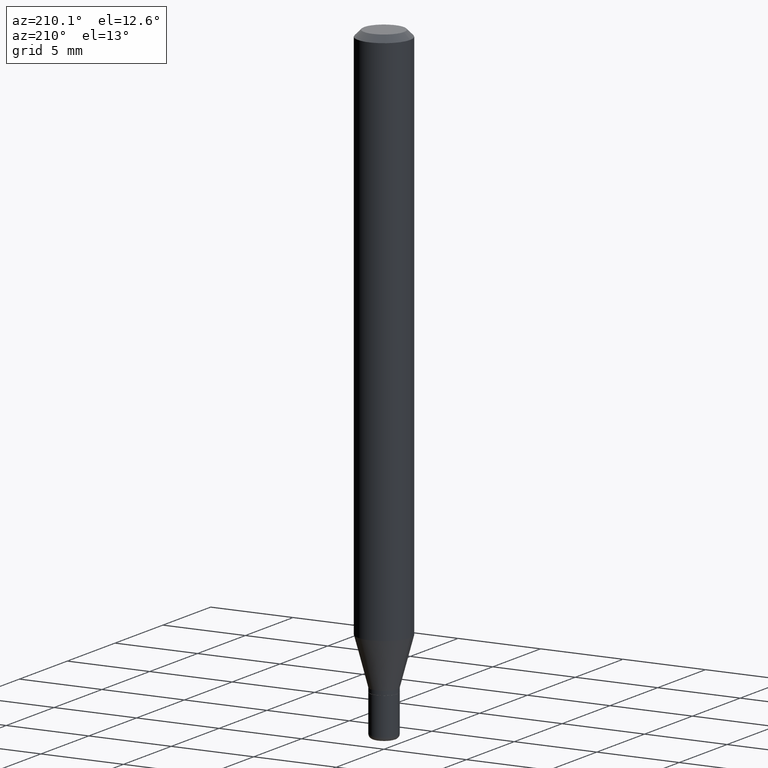
[diagram: clean part render]
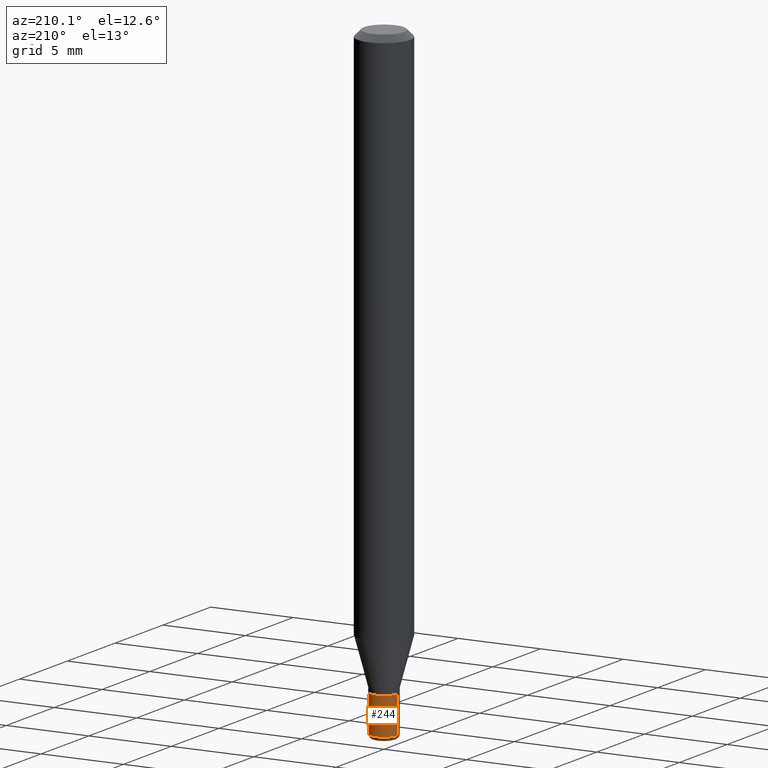
[diagram: same view with one face highlighted and labeled with its STEP entity id]
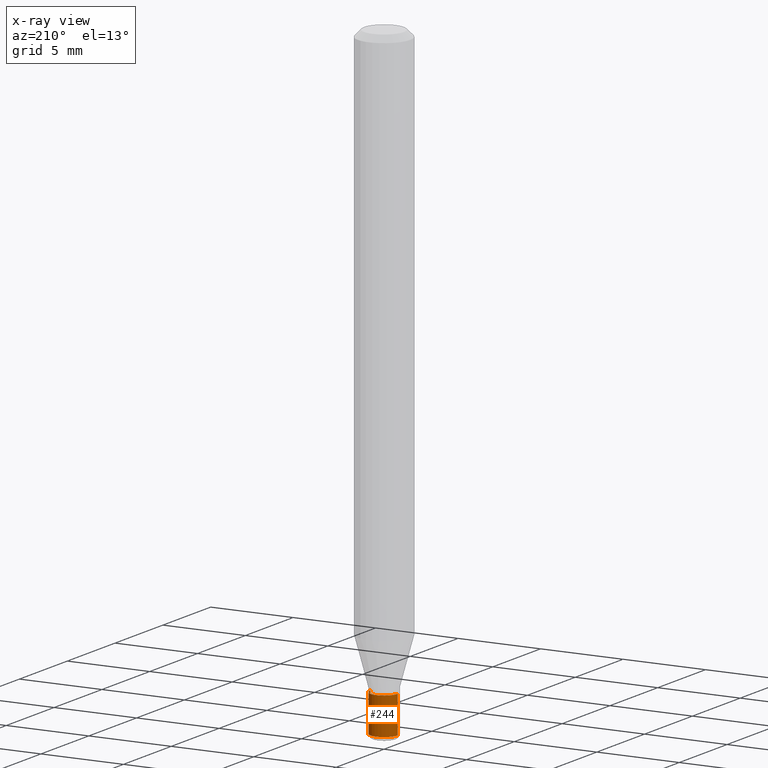
[diagram: x-ray of the same camera — body ghosted, the highlighted face saturated]
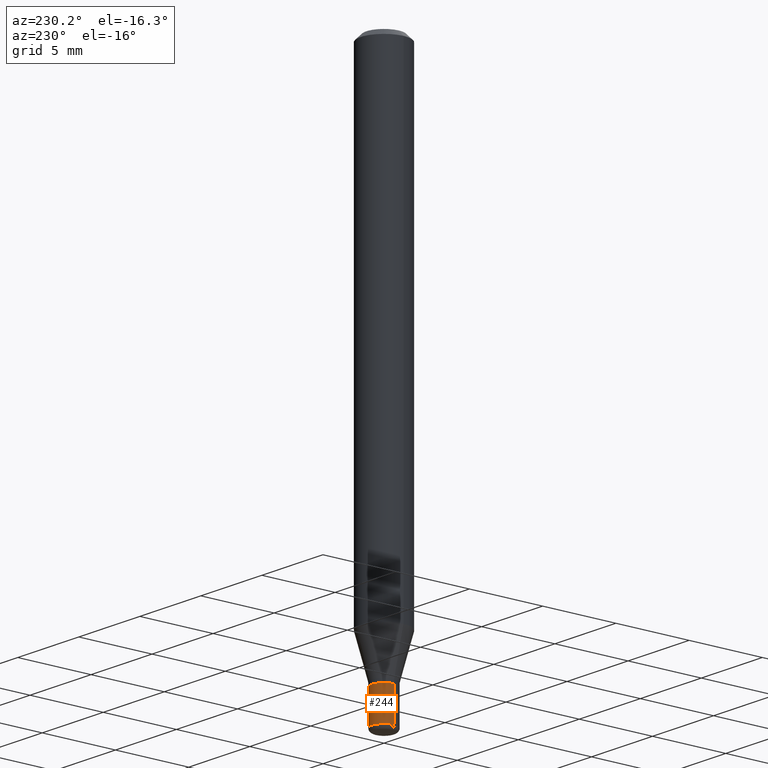
[diagram: same view with one face highlighted and labeled with its STEP entity id]
A machine part, auxiliary view. The second image highlights one B-rep face of the part: STEP entity #244.
The next image is the same camera in x-ray: the body ghosted, the highlighted face saturated — about 0% of this face is hidden behind the body in this view.
A second angle (auxiliary view) of the same face is appended — the face is thin or edge-on in the first view.
In plain terms, the highlighted cylindrical surface (edge-blend (fillet) strip) has radius 0.8255 mm, axis along (-0, 0, 1).
Its self-contained STEP definition (entity closure, byte-faithful):
#7 = EDGE_CURVE ( 'NONE', #77, #22, #14, .T. ) ;
#14 = CIRCLE ( 'NONE', #138, 0.03250000000000000111 ) ;
#21 = CARTESIAN_POINT ( 'NONE',  ( -0.03249999999999994560, -4.817755626845157109E-15, -1.490000000000000213 ) ) ;
#22 = VERTEX_POINT ( 'NONE', #481 ) ;
#44 = AXIS2_PLACEMENT_3D ( 'NONE', #222, #267, #308 ) ;
#77 = VERTEX_POINT ( 'NONE', #120 ) ;
#81 = VECTOR ( 'NONE', #482, 39.37007874015748143 ) ;
#105 = CYLINDRICAL_SURFACE ( 'NONE', #44, 0.03249999999999996642 ) ;
#120 = CARTESIAN_POINT ( 'NONE',  ( 0.03250000000000000111, -5.122003124082894208E-15, -1.402000000000000135 ) ) ;
#121 = EDGE_CURVE ( 'NONE', #357, #22, #173, .T. ) ;
#138 = AXIS2_PLACEMENT_3D ( 'NONE', #170, #276, #321 ) ;
#140 = CARTESIAN_POINT ( 'NONE',  ( -0.03249999999999996642, 2.309263891220323218E-16, -1.598653904332843006E-30 ) ) ;
#159 = AXIS2_PLACEMENT_3D ( 'NONE', #484, #288, #278 ) ;
#170 = CARTESIAN_POINT ( 'NONE',  ( 3.428547266271562329E-29, -4.895056837058090855E-15, -1.402000000000000135 ) ) ;
#173 = LINE ( 'NONE', #140, #81 ) ;
#174 = CARTESIAN_POINT ( 'NONE',  ( 0.03249999999999994560, -5.429253481901091458E-15, -1.490000000000000213 ) ) ;
#183 = CARTESIAN_POINT ( 'NONE',  ( 0.03249999999999996642, -2.269462870248034512E-16, 1.584757452133677591E-30 ) ) ;
#196 = ORIENTED_EDGE ( 'NONE', *, *, #7, .F. ) ;
#222 = CARTESIAN_POINT ( 'NONE',  ( 0.000000000000000000, 0.000000000000000000, 0.000000000000000000 ) ) ;
#244 = ADVANCED_FACE ( 'NONE', ( #311 ), #105, .T. ) ;
#267 = DIRECTION ( 'NONE',  ( -2.445468806185136597E-29, 3.491481338843145583E-15, 1.000000000000000000 ) ) ;
#276 = DIRECTION ( 'NONE',  ( -2.445468806185136597E-29, 3.491481338843145583E-15, 1.000000000000000000 ) ) ;
#278 = DIRECTION ( 'NONE',  ( 1.000000000000000000, -6.982962677686269866E-15, 0.000000000000000000 ) ) ;
#288 = DIRECTION ( 'NONE',  ( -2.445468806185136597E-29, 3.491481338843145583E-15, 1.000000000000000000 ) ) ;
#308 = DIRECTION ( 'NONE',  ( 1.000000000000000000, -6.982962677686267499E-15, 4.876176775795936353E-29 ) ) ;
#309 = ORIENTED_EDGE ( 'NONE', *, *, #364, .F. ) ;
#311 = FACE_OUTER_BOUND ( 'NONE', #513, .T. ) ;
#312 = VECTOR ( 'NONE', #343, 39.37007874015748143 ) ;
#321 = DIRECTION ( 'NONE',  ( 1.000000000000000000, -6.982962677686258033E-15, 0.000000000000000000 ) ) ;
#331 = ORIENTED_EDGE ( 'NONE', *, *, #121, .T. ) ;
#343 = DIRECTION ( 'NONE',  ( -2.445468806185136877E-29, 3.491481338843145188E-15, 1.000000000000000000 ) ) ;
#357 = VERTEX_POINT ( 'NONE', #21 ) ;
#364 = EDGE_CURVE ( 'NONE', #457, #77, #455, .T. ) ;
#425 = ORIENTED_EDGE ( 'NONE', *, *, #464, .T. ) ;
#455 = LINE ( 'NONE', #183, #312 ) ;
#457 = VERTEX_POINT ( 'NONE', #174 ) ;
#464 = EDGE_CURVE ( 'NONE', #457, #357, #468, .T. ) ;
#468 = CIRCLE ( 'NONE', #159, 0.03249999999999994560 ) ;
#481 = CARTESIAN_POINT ( 'NONE',  ( -0.03250000000000000111, -4.817755626845157109E-15, -1.402000000000000135 ) ) ;
#482 = DIRECTION ( 'NONE',  ( -2.445468806185136877E-29, 3.491481338843145188E-15, 1.000000000000000000 ) ) ;
#484 = CARTESIAN_POINT ( 'NONE',  ( 3.643748521215853910E-29, -5.202307194876288105E-15, -1.490000000000000213 ) ) ;
#513 = EDGE_LOOP ( 'NONE', ( #425, #331, #196, #309 ) ) ;